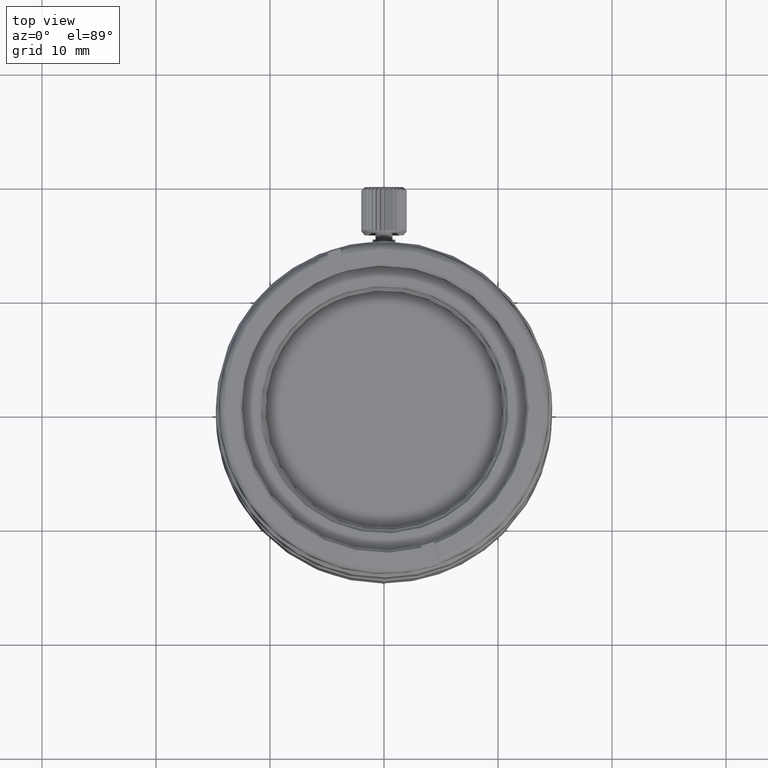
[diagram: clean part render]
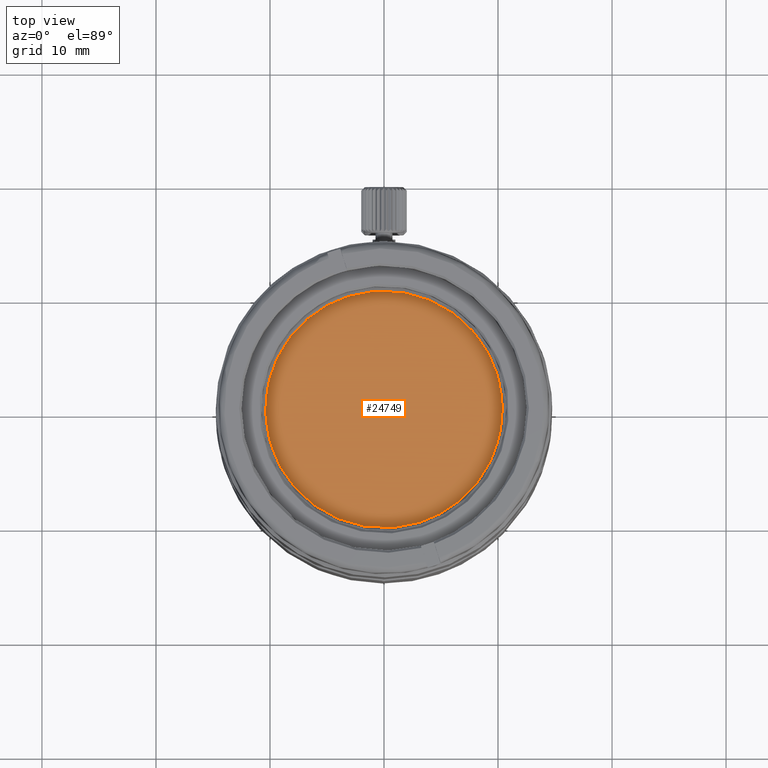
[diagram: same view with one face highlighted and labeled with its STEP entity id]
A machine part, top view. The second image highlights one B-rep face of the part: STEP entity #24749.
In plain terms, the highlighted face is a freeform B-spline surface patch.
Its self-contained STEP definition (entity closure, byte-faithful):
#482 = CARTESIAN_POINT ( 'NONE',  ( -9.907641970351452443, -3.162061131032089190, 16.61599700800000079 ) ) ;
#1305 = ORIENTED_EDGE ( 'NONE', *, *, #25682, .F. ) ;
#2640 = CARTESIAN_POINT ( 'NONE',  ( -10.52480000000000082, -10.52480000000000082, 16.61599700800000079 ) ) ;
#3775 = CARTESIAN_POINT ( 'NONE',  ( -3.162061126718910042, 9.907641973619689679, 16.61599700800000079 ) ) ;
#3847 = CARTESIAN_POINT ( 'NONE',  ( -3.162061126718910042, 9.907641973619689679, 16.61599700800000079 ) ) ;
#4038 = CARTESIAN_POINT ( 'NONE',  ( 16.65322280422809698, 16.23176422227938431, 16.61599700800000079 ) ) ;
#10161 = EDGE_LOOP ( 'NONE', ( #15732, #1305 ) ) ;
#10853 = B_SPLINE_SURFACE_WITH_KNOTS ( 'NONE', 1, 1, ( 
 ( #23203, #11772 ),
 ( #2640, #20666 ) ),
 .UNSPECIFIED., .F., .F., .F.,
 ( 2, 2 ),
 ( 2, 2 ),
 ( 0.0000000000000000000, 1.000000000000000000 ),
 ( 0.0000000000000000000, 1.000000000000000000 ),
 .UNSPECIFIED. ) ;
#11062 =( BOUNDED_CURVE ( )  B_SPLINE_CURVE ( 3, ( #36170, #21248, #12717, #482, #33446, #27068, #3775 ),
 .UNSPECIFIED., .F., .T. ) 
 B_SPLINE_CURVE_WITH_KNOTS ( ( 4, 3, 4 ),
 ( -5.021324096831010664, -3.450527770036112774, -1.879731443241214883 ),
 .UNSPECIFIED. ) 
 CURVE ( )  GEOMETRIC_REPRESENTATION_ITEM ( )  RATIONAL_B_SPLINE_CURVE ( ( 1.000000000000000000, 0.8047378540760217192, 0.8047378540760217192, 1.000000000000000000, 0.8047378540760217192, 0.8047378540760217192, 1.000000000000000000 ) ) 
 REPRESENTATION_ITEM ( '' )  );
#11481 = EDGE_CURVE ( 'NONE', #25183, #23351, #18780, .T. ) ;
#11772 = CARTESIAN_POINT ( 'NONE',  ( 10.52480000000000082, 10.52480000000000082, 16.61599700800000079 ) ) ;
#12717 = CARTESIAN_POINT ( 'NONE',  ( -8.055349444544434689, -8.965823427070914065, 16.61599700800000079 ) ) ;
#15732 = ORIENTED_EDGE ( 'NONE', *, *, #11481, .F. ) ;
#16141 = CARTESIAN_POINT ( 'NONE',  ( -3.162061126718910042, 9.907641973619689679, 16.61599700800000079 ) ) ;
#18780 =( BOUNDED_CURVE ( )  B_SPLINE_CURVE ( 3, ( #3847, #4038, #21326, #30605 ),
 .UNSPECIFIED., .F., .T. ) 
 B_SPLINE_CURVE_WITH_KNOTS ( ( 4, 4 ),
 ( -8.162916750420800227, -5.021324096831010664 ),
 .UNSPECIFIED. ) 
 CURVE ( )  GEOMETRIC_REPRESENTATION_ITEM ( )  RATIONAL_B_SPLINE_CURVE ( ( 1.000000000000000000, 0.3333333335299309419, 0.3333333335299309419, 1.000000000000000000 ) ) 
 REPRESENTATION_ITEM ( '' )  );
#19902 = FACE_OUTER_BOUND ( 'NONE', #10161, .T. ) ;
#20666 = CARTESIAN_POINT ( 'NONE',  ( -10.52480000000000082, 10.52480000000000082, 16.61599700800000079 ) ) ;
#21248 = CARTESIAN_POINT ( 'NONE',  ( -2.641701162594734420, -11.75993449670029278, 16.61599700800000079 ) ) ;
#21326 = CARTESIAN_POINT ( 'NONE',  ( 22.97734506078307248, -3.583519707304470003, 16.61599700800000079 ) ) ;
#22117 = CARTESIAN_POINT ( 'NONE',  ( 3.162061130021455391, -9.907641972565670585, 16.61599700800000079 ) ) ;
#23203 = CARTESIAN_POINT ( 'NONE',  ( 10.52480000000000082, -10.52480000000000082, 16.61599700800000079 ) ) ;
#23351 = VERTEX_POINT ( 'NONE', #22117 ) ;
#24749 = ADVANCED_FACE ( 'NONE', ( #19902 ), #10853, .F. ) ;
#25183 = VERTEX_POINT ( 'NONE', #16141 ) ;
#25682 = EDGE_CURVE ( 'NONE', #23351, #25183, #11062, .T. ) ;
#27068 = CARTESIAN_POINT ( 'NONE',  ( -8.965823425418735226, 8.055349446383353040, 16.61599700800000079 ) ) ;
#30605 = CARTESIAN_POINT ( 'NONE',  ( 3.162061130021455391, -9.907641972565670585, 16.61599700800000079 ) ) ;
#33446 = CARTESIAN_POINT ( 'NONE',  ( -11.75993449615847197, 2.641701165006734797, 16.61599700800000079 ) ) ;
#36170 = CARTESIAN_POINT ( 'NONE',  ( 3.162061130021455391, -9.907641972565670585, 16.61599700800000079 ) ) ;